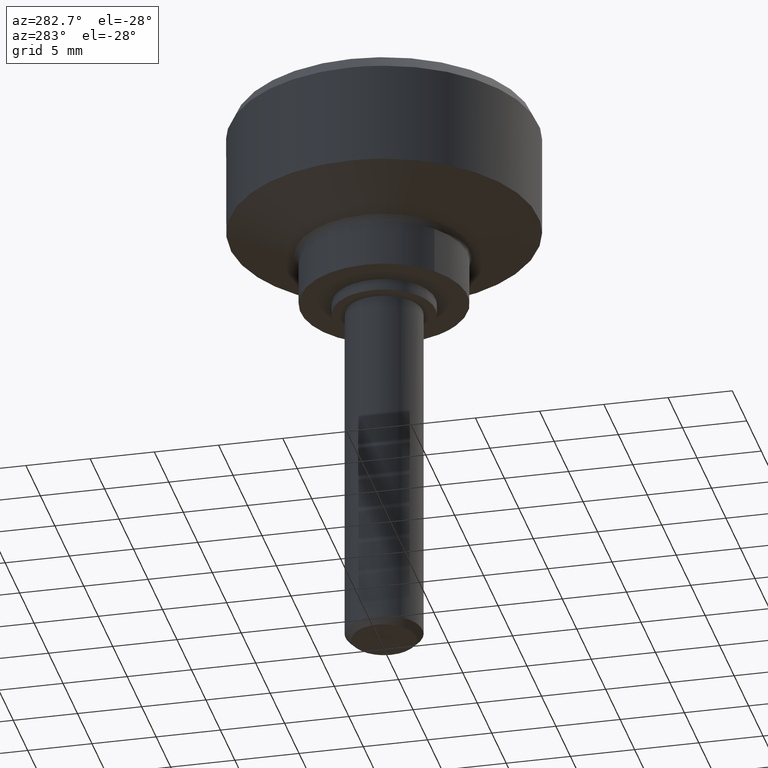
[diagram: clean part render]
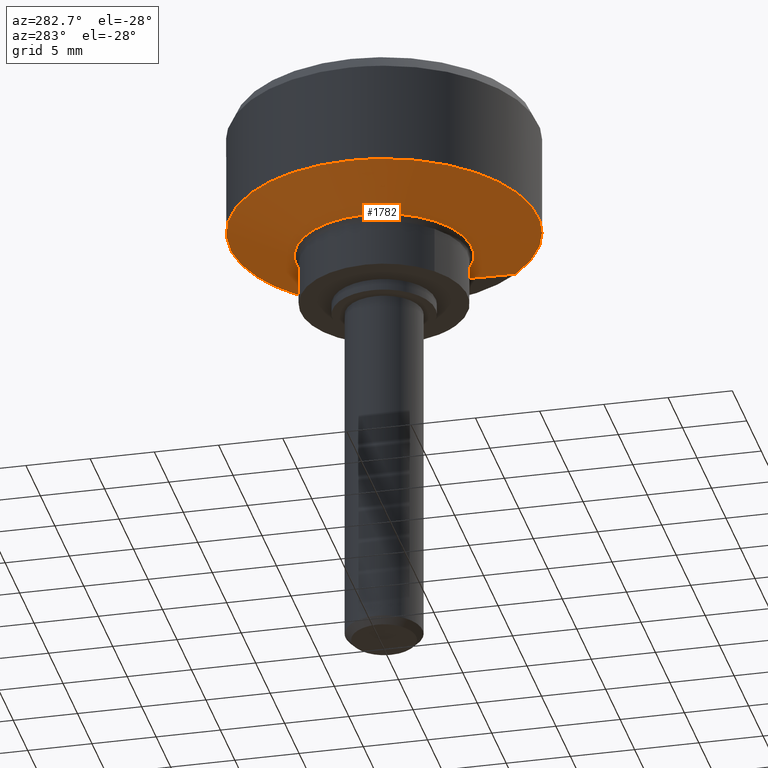
[diagram: same view with one face highlighted and labeled with its STEP entity id]
A machine part, auxiliary view. The second image highlights one B-rep face of the part: STEP entity #1782.
In plain terms, the highlighted face is a freeform B-spline surface patch.
Its self-contained STEP definition (entity closure, byte-faithful):
#1631=CARTESIAN_POINT('',(4.604857358992034,4.852507164659589,4.972407224057033));
#1632=CARTESIAN_POINT('',(-0.247649805667555,9.457364523651624,4.972407224057033));
#1633=CARTESIAN_POINT('',(-4.852507164659589,4.604857358992034,4.972407224057033));
#1634=CARTESIAN_POINT('',(-9.457364523651624,-0.247649805667555,4.972407224057033));
#1635=CARTESIAN_POINT('',(-4.604857358992034,-4.852507164659589,4.972407224057033));
#1636=CARTESIAN_POINT('',(0.247649805667555,-9.457364523651624,4.972407224057033));
#1637=CARTESIAN_POINT('',(4.852507164659589,-4.604857358992034,4.972407224057033));
#1638=CARTESIAN_POINT('',(8.351639847058371,8.800792084334651,7.050689819398677));
#1639=CARTESIAN_POINT('',(-0.449152237276280,17.152431931393028,7.050689819398677));
#1640=CARTESIAN_POINT('',(-8.800792084334651,8.351639847058371,7.050689819398677));
#1641=CARTESIAN_POINT('',(-17.152431931393028,-0.449152237276280,7.050689819398677));
#1642=CARTESIAN_POINT('',(-8.351639847058371,-8.800792084334651,7.050689819398677));
#1643=CARTESIAN_POINT('',(0.449152237276280,-17.152431931393028,7.050689819398677));
#1644=CARTESIAN_POINT('',(8.800792084334651,-8.351639847058371,7.050689819398677));
#1652=(BOUNDED_SURFACE()B_SPLINE_SURFACE(2,1,((#1631,#1638),(#1632,#1639),(#1633,#1640),(#1634,#1641),(#1635,#1642),(#1636,#1643),(#1637,#1644)),.UNSPECIFIED.,.F.,.F.,.U.)B_SPLINE_SURFACE_WITH_KNOTS((3,2,2,3),(2,2),(0.0,20.102212521624580,40.204425043249167,60.306637564873753),(0.0,5.826370342324121),.UNSPECIFIED.)GEOMETRIC_REPRESENTATION_ITEM()RATIONAL_B_SPLINE_SURFACE(((1.0,1.0),(0.707106781186548,0.707106781186548),(1.0,1.0),(0.707106781186548,0.707106781186548),(1.0,1.0),(0.707106781186548,0.707106781186548),(1.0,1.0)))REPRESENTATION_ITEM('')SURFACE());
#1653=CARTESIAN_POINT('',(-12.0,0.0,7.000000000000100));
#1654=VERTEX_POINT('',#1653);
#1655=CARTESIAN_POINT('',(8.260254908325912,8.704492452146642,7.000000000000103));
#1656=VERTEX_POINT('',#1655);
#1657=CARTESIAN_POINT('',(-12.0,0.0,7.000000000000100));
#1658=CARTESIAN_POINT('',(-12.0,12.0,7.000000000000100));
#1659=CARTESIAN_POINT('',(0.0,12.0,7.000000000000100));
#1660=CARTESIAN_POINT('',(4.787514551686011,12.000000000000009,7.000000000000100));
#1661=CARTESIAN_POINT('',(8.260254908325914,8.704492452146642,7.000000000000104));
#1669=(BOUNDED_CURVE()B_SPLINE_CURVE(2,(#1657,#1658,#1659,#1660,#1661),.UNSPECIFIED.,.F.,.U.)B_SPLINE_CURVE_WITH_KNOTS((3,2,3),(0.0,0.250000000000000,0.371049526659105),.UNSPECIFIED.)CURVE()GEOMETRIC_REPRESENTATION_ITEM()RATIONAL_B_SPLINE_CURVE((1.0,0.707106781186548,1.0,0.858181658003879,0.853699661369435))REPRESENTATION_ITEM(''));
#1670=EDGE_CURVE('',#1654,#1656,#1669,.T.);
#1671=ORIENTED_EDGE('',*,*,#1670,.T.);
#1672=CARTESIAN_POINT('',(4.694013445308249,4.946458076466312,5.021860733314311));
#1673=VERTEX_POINT('',#1672);
#1674=CARTESIAN_POINT('',(4.694013445308249,4.946458076466312,5.021860733314311));
#1675=CARTESIAN_POINT('',(8.260254908325912,8.704492452146642,7.000000000000103));
#1676=QUASI_UNIFORM_CURVE('',1,(#1674,#1675),.UNSPECIFIED.,.F.,.U.);
#1677=EDGE_CURVE('',#1673,#1656,#1676,.T.);
#1678=ORIENTED_EDGE('',*,*,#1677,.F.);
#1679=CARTESIAN_POINT('',(-0.133131989355560,6.817879777029487,5.021860706398572));
#1680=VERTEX_POINT('',#1679);
#1681=CARTESIAN_POINT('',(-0.133131989355560,6.817879777029487,5.021860706398573));
#1682=CARTESIAN_POINT('',(-0.066572339783741,6.819179549401331,5.021860733314310));
#1683=CARTESIAN_POINT('',(0.0,6.819179549401331,5.021860733314310));
#1684=CARTESIAN_POINT('',(2.720576776943343,6.819179549401332,5.021860733314311));
#1685=CARTESIAN_POINT('',(4.694013445308250,4.946458076466312,5.021860733314311));
#1693=(BOUNDED_CURVE()B_SPLINE_CURVE(2,(#1681,#1682,#1683,#1684,#1685),.UNSPECIFIED.,.F.,.U.)B_SPLINE_CURVE_WITH_KNOTS((3,2,3),(0.246562330997886,0.250000000000000,0.371049526659110),.UNSPECIFIED.)CURVE()GEOMETRIC_REPRESENTATION_ITEM()RATIONAL_B_SPLINE_CURVE((0.992055801624584,0.995972520243023,1.0,0.858181658003873,0.853699661369434))REPRESENTATION_ITEM(''));
#1694=EDGE_CURVE('',#1680,#1673,#1693,.T.);
#1695=ORIENTED_EDGE('',*,*,#1694,.F.);
#1696=CARTESIAN_POINT('',(-6.819179549401331,0.0,5.021860733314310));
#1697=VERTEX_POINT('',#1696);
#1698=CARTESIAN_POINT('',(-6.819179549401331,0.0,5.021860733314310));
#1699=CARTESIAN_POINT('',(-6.819179549401331,6.687322129815215,5.021860733314309));
#1700=CARTESIAN_POINT('',(-0.133131989355560,6.817879777029487,5.021860706398573));
#1708=(BOUNDED_CURVE()B_SPLINE_CURVE(2,(#1698,#1699,#1700),.UNSPECIFIED.,.F.,.U.)B_SPLINE_CURVE_WITH_KNOTS((3,3),(0.0,0.246562330997886),.UNSPECIFIED.)CURVE()GEOMETRIC_REPRESENTATION_ITEM()RATIONAL_B_SPLINE_CURVE((1.0,0.711134260943525,0.992055801624584))REPRESENTATION_ITEM(''));
#1709=EDGE_CURVE('',#1697,#1680,#1708,.T.);
#1710=ORIENTED_EDGE('',*,*,#1709,.F.);
#1711=CARTESIAN_POINT('',(-0.257016120606417,-6.814334266405956,5.021860706397108));
#1712=VERTEX_POINT('',#1711);
#1713=CARTESIAN_POINT('',(-0.257016120606417,-6.814334266405956,5.021860706397108));
#1714=CARTESIAN_POINT('',(-6.819179549401331,-6.566829337767828,5.021860733314310));
#1715=CARTESIAN_POINT('',(-6.819179549401331,0.0,5.021860733314310));
#1723=(BOUNDED_CURVE()B_SPLINE_CURVE(2,(#1713,#1714,#1715),.UNSPECIFIED.,.F.,.U.)B_SPLINE_CURVE_WITH_KNOTS((3,3),(0.756613471435007,1.0),.UNSPECIFIED.)CURVE()GEOMETRIC_REPRESENTATION_ITEM()RATIONAL_B_SPLINE_CURVE((0.984913610587744,0.714854944931068,1.0))REPRESENTATION_ITEM(''));
#1724=EDGE_CURVE('',#1712,#1697,#1723,.T.);
#1725=ORIENTED_EDGE('',*,*,#1724,.F.);
#1726=CARTESIAN_POINT('',(4.946458076466313,-4.694013445308249,5.021860733314311));
#1727=VERTEX_POINT('',#1726);
#1728=CARTESIAN_POINT('',(4.946458076466313,-4.694013445308249,5.021860733314311));
#1729=CARTESIAN_POINT('',(2.929750745297536,-6.819179549401330,5.021860733314310));
#1730=CARTESIAN_POINT('',(0.0,-6.819179549401331,5.021860733314310));
#1731=CARTESIAN_POINT('',(-0.128553732256057,-6.819179549401331,5.021860733314311));
#1732=CARTESIAN_POINT('',(-0.257016120606417,-6.814334266405956,5.021860706397109));
#1740=(BOUNDED_CURVE()B_SPLINE_CURVE(2,(#1728,#1729,#1730,#1731,#1732),.UNSPECIFIED.,.F.,.U.)B_SPLINE_CURVE_WITH_KNOTS((3,2,3),(0.621049526659110,0.750000000000000,0.756613471435008),.UNSPECIFIED.)CURVE()GEOMETRIC_REPRESENTATION_ITEM()RATIONAL_B_SPLINE_CURVE((0.853699661369434,0.848925123182674,1.0,0.992251836255479,0.984913610587743))REPRESENTATION_ITEM(''));
#1741=EDGE_CURVE('',#1727,#1712,#1740,.T.);
#1742=ORIENTED_EDGE('',*,*,#1741,.F.);
#1743=CARTESIAN_POINT('',(8.704492452343420,-8.260254908528534,7.000000000107857));
#1744=VERTEX_POINT('',#1743);
#1745=CARTESIAN_POINT('',(4.946458076466313,-4.694013445308249,5.021860733314311));
#1746=CARTESIAN_POINT('',(8.704492452343420,-8.260254908528534,7.000000000107857));
#1747=QUASI_UNIFORM_CURVE('',1,(#1745,#1746),.UNSPECIFIED.,.F.,.U.);
#1748=EDGE_CURVE('',#1727,#1744,#1747,.T.);
#1749=ORIENTED_EDGE('',*,*,#1748,.T.);
#1750=CARTESIAN_POINT('',(0.732581451792134,-11.977617643608809,7.000000000000100));
#1751=VERTEX_POINT('',#1750);
#1752=CARTESIAN_POINT('',(8.704492452343420,-8.260254908528534,7.000000000107857));
#1753=CARTESIAN_POINT('',(5.450691105156584,-11.689046099381901,7.000000000000099));
#1754=CARTESIAN_POINT('',(0.732581451792134,-11.977617643608854,7.000000000000100));
#1762=(BOUNDED_CURVE()B_SPLINE_CURVE(2,(#1752,#1753,#1754),.UNSPECIFIED.,.F.,.U.)B_SPLINE_CURVE_WITH_KNOTS((3,3),(0.621049526659395,0.739332976973684),.UNSPECIFIED.)CURVE()GEOMETRIC_REPRESENTATION_ITEM()RATIONAL_B_SPLINE_CURVE((0.853699661369413,0.849320081863306,0.976072073246076))REPRESENTATION_ITEM(''));
#1763=EDGE_CURVE('',#1744,#1751,#1762,.T.);
#1764=ORIENTED_EDGE('',*,*,#1763,.T.);
#1765=CARTESIAN_POINT('',(0.732581451792134,-11.977617643608854,7.000000000000100));
#1766=CARTESIAN_POINT('',(0.366632646836322,-11.999999999999998,7.000000000000100));
#1767=CARTESIAN_POINT('',(0.0,-12.0,7.000000000000100));
#1768=CARTESIAN_POINT('',(-12.0,-12.0,7.000000000000100));
#1769=CARTESIAN_POINT('',(-12.0,0.0,7.000000000000100));
#1777=(BOUNDED_CURVE()B_SPLINE_CURVE(2,(#1765,#1766,#1767,#1768,#1769),.UNSPECIFIED.,.F.,.U.)B_SPLINE_CURVE_WITH_KNOTS((3,2,3),(0.739332976973684,0.750000000000000,1.0),.UNSPECIFIED.)CURVE()GEOMETRIC_REPRESENTATION_ITEM()RATIONAL_B_SPLINE_CURVE((0.976072073246076,0.987502805162661,1.0,0.707106781186548,1.0))REPRESENTATION_ITEM(''));
#1778=EDGE_CURVE('',#1751,#1654,#1777,.T.);
#1779=ORIENTED_EDGE('',*,*,#1778,.T.);
#1780=EDGE_LOOP('',(#1671,#1678,#1695,#1710,#1725,#1742,#1749,#1764,#1779));
#1781=FACE_OUTER_BOUND('',#1780,.T.);
#1782=ADVANCED_FACE('',(#1781),#1652,.T.);